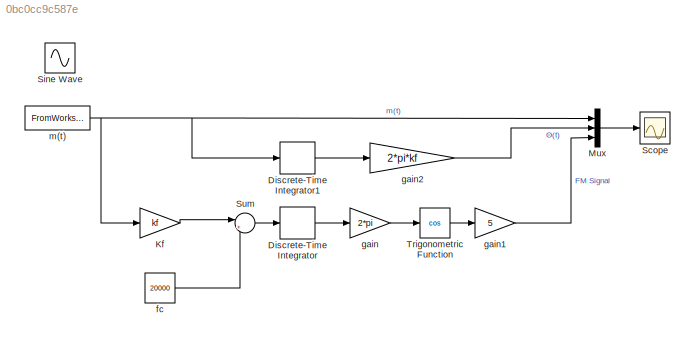
MODEL slx_0bc0cc9c587e
KIND model
CONFIG AbsTol = auto
CONFIG EnableMultiTasking = off
CONFIG FixedStep = auto
CONFIG MaxStep = auto
CONFIG MinStep = auto
CONFIG RelTol = 1e-3
CONFIG SampleTimeConstraint = Unconstrained
CONFIG SolverName = VariableStepAuto
CONFIG StartTime = 0.0
CONFIG StopTime = 2/1000
BLOCK [DiscreteIntegrator] Discrete-Time Integrator
  ICPrevOutput = DiscIntNeverNeededParam
  ICPrevScaledInput = DiscIntNeverNeededParam
  InitialConditionSetting = Auto
  Ports = [1, 1]
  SampleTime = 0.0000001
BLOCK [DiscreteIntegrator] Discrete-Time Integrator1
  ICPrevOutput = DiscIntNeverNeededParam
  ICPrevScaledInput = DiscIntNeverNeededParam
  InitialConditionSetting = Auto
  Ports = [1, 1]
  SampleTime = 0.0000001
BLOCK [Gain] Kf
  Description = Kp=2000
  Gain = kf
BLOCK [Mux] Mux
  DisplayOption = bar
  Inputs = 3
  Ports = [3, 1]
BLOCK [Scope] Scope
  Floating = off
  NumInputPorts = 1
  Ports = [1]
  ScopeSpecificationString = Simulink.scopes.TimeScopeBlockCfg('CurrentConfiguration', extmgr.ConfigurationSet(extmgr.Configuration('Core','General UI',true),extmgr.Configuration('Core','Source UI',true),extmgr.Configuration('Sources','WiredSimulink',true),extmgr.Configuration('Visuals','Time Domain',true,'SerializedDisplays',{struct('MinYLimReal','-10.125','MaxYLimReal','41.125','YLabelReal','','MinYLimMag','0.00000','MaxYLi...<+1710ch>
BLOCK [Sin] Sine Wave
  Amplitude = 3
  Frequency = 2*pi*1000
  Ports = [0, 1]
  SampleTime = 0
BLOCK [Sum] Sum
  Inputs = |++
  Ports = [2, 1]
BLOCK [Trigonometry] Trigonometric Function
  Operator = cos
  Ports = [1, 1]
BLOCK [Constant] fc
  Value = 20000
BLOCK [Gain] gain
  Description = Kp=2000
  Gain = 2*pi
BLOCK [Gain] gain1
  Description = Kp=2000
  Gain = 5
BLOCK [Gain] gain2
  Description = Kp=2000
  Gain = 2*pi*kf
BLOCK [FromWorkspace] m(t)
  VariableName = simin
LINE Discrete-Time Integrator1:1 -> gain2:1
LINE Discrete-Time Integrator:1 -> gain:1
LINE Kf:1 -> Sum:1
LINE Mux:1 -> Scope:1
LINE Sum:1 -> Discrete-Time Integrator:1
LINE Trigonometric Function:1 -> gain1:1
LINE fc:1 -> Sum:2
LINE gain1:1 -> Mux:3
LINE gain2:1 -> Mux:2
LINE gain:1 -> Trigonometric Function:1
NET m(t):1 -> Discrete-Time Integrator1:1, Kf:1, Mux:1
note: NET lines group one-source signal fan-out (src -> all destinations, sorted); 1:1 wires keep LINE
